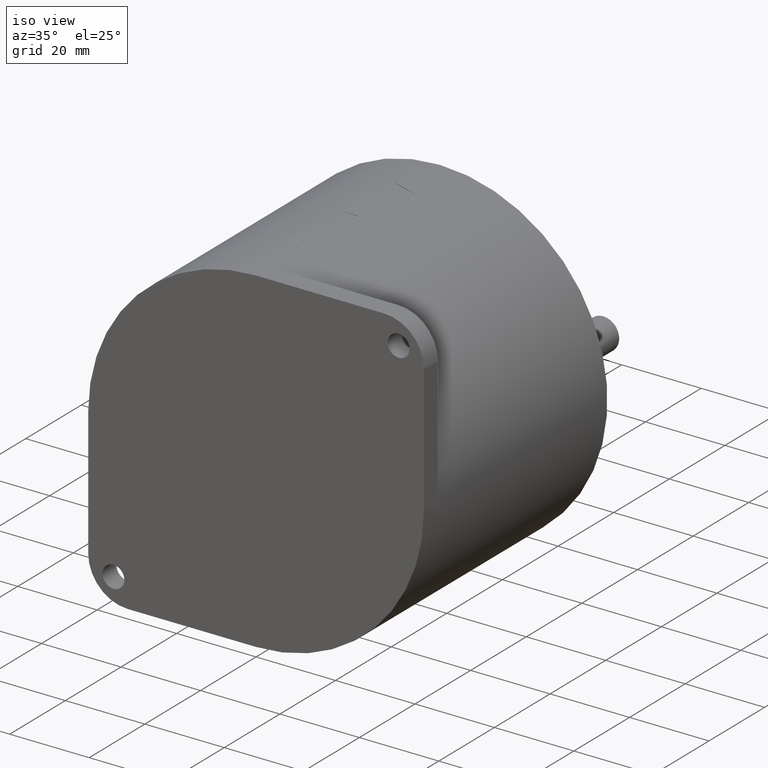
[diagram: clean part render]
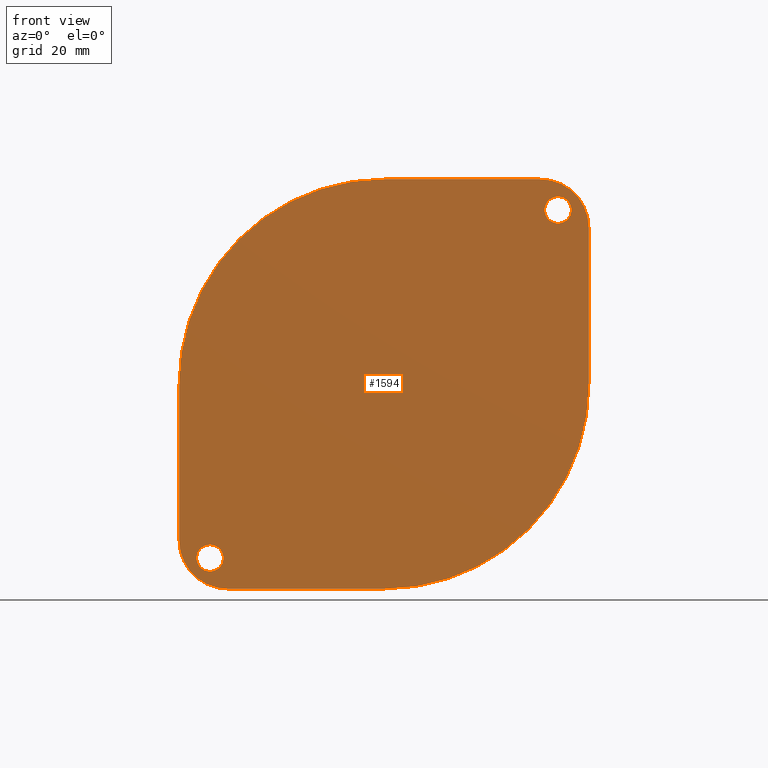
[diagram: tour spotlight — one face highlighted and labeled with its STEP entity id]
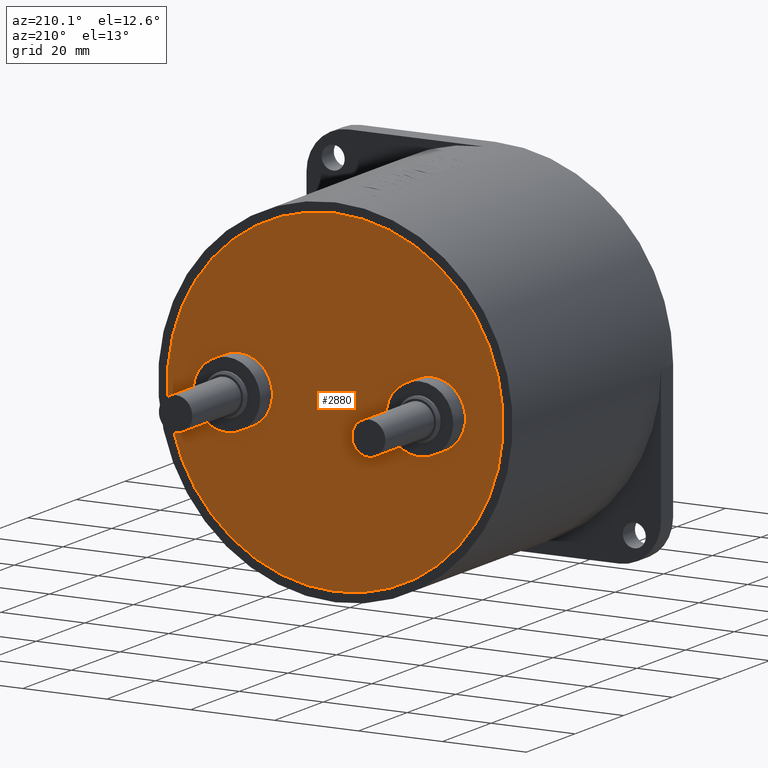
[diagram: tour spotlight — one face highlighted and labeled with its STEP entity id]
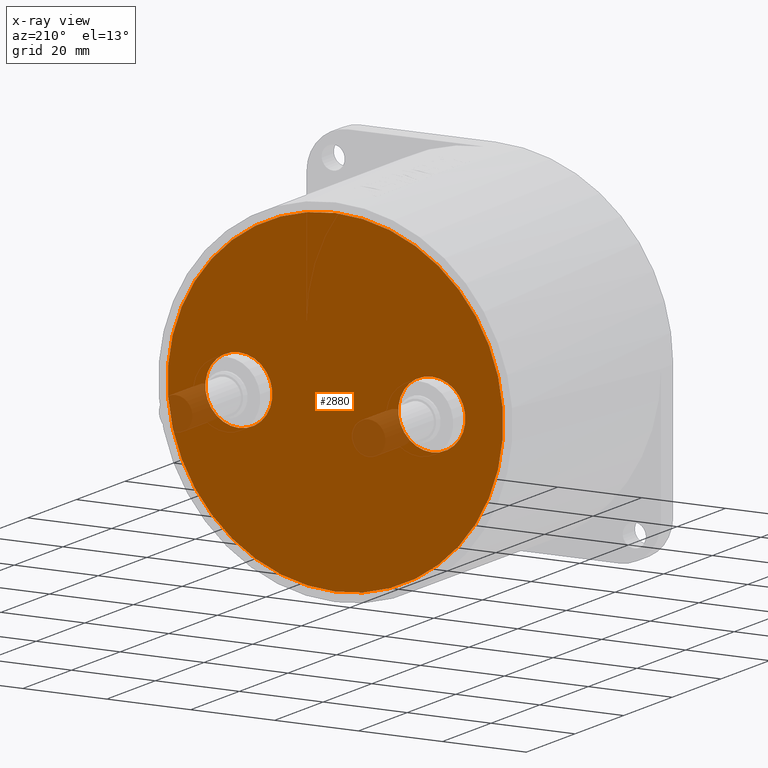
[diagram: x-ray of the same camera — body ghosted, this tour face saturated]
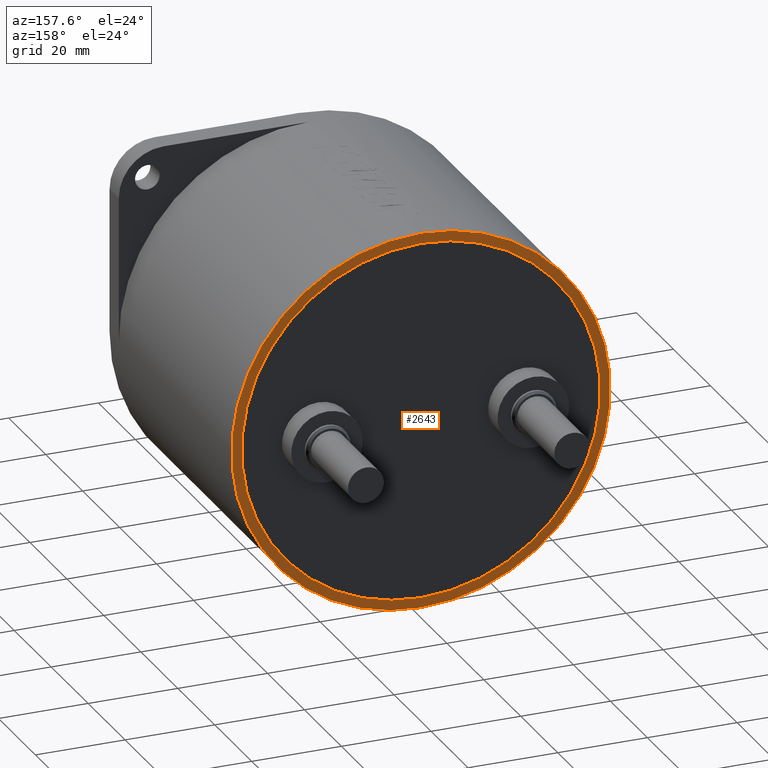
[diagram: tour spotlight — one face highlighted and labeled with its STEP entity id]
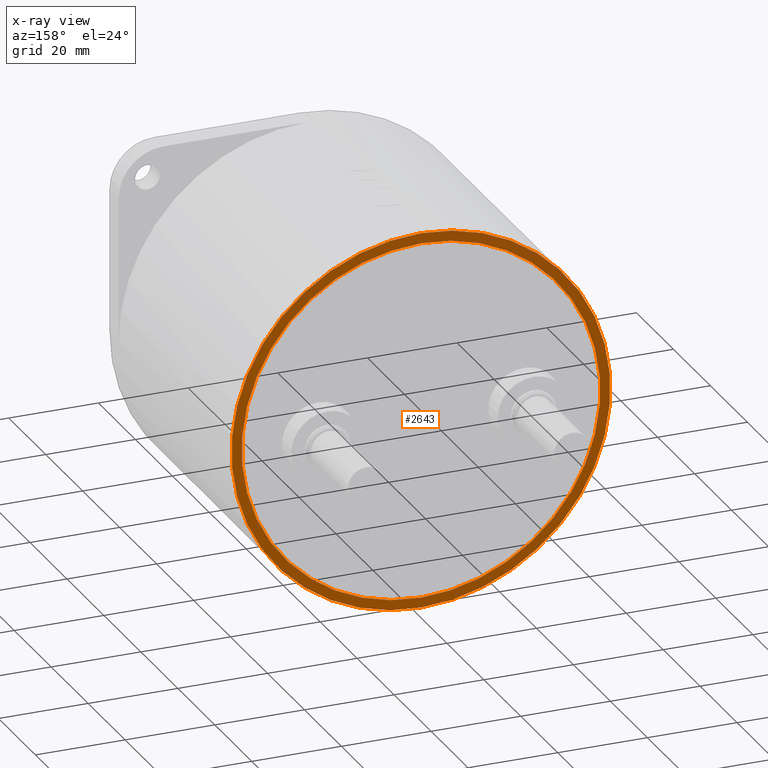
[diagram: x-ray of the same camera — body ghosted, this tour face saturated]
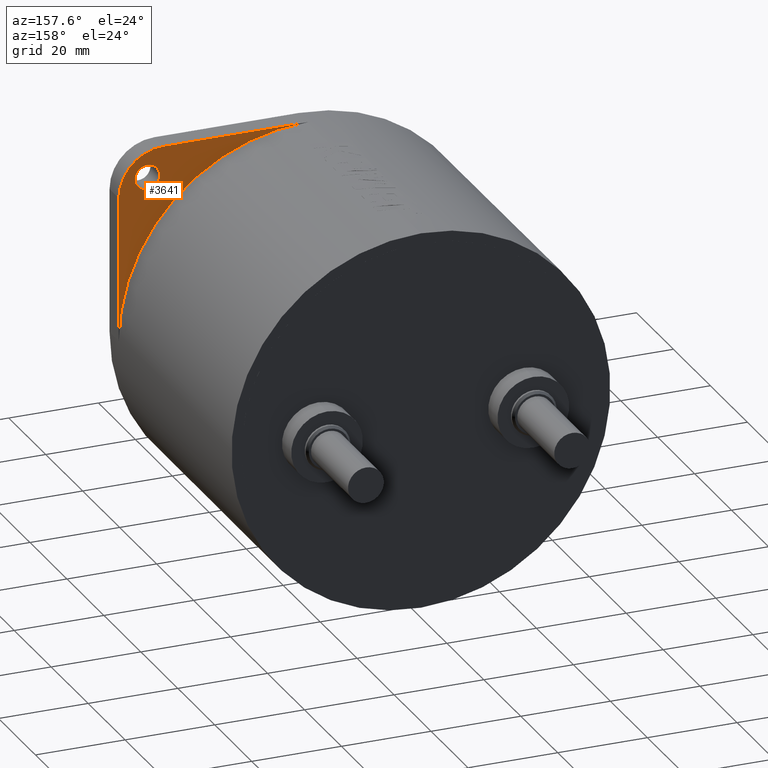
[diagram: tour spotlight — one face highlighted and labeled with its STEP entity id]
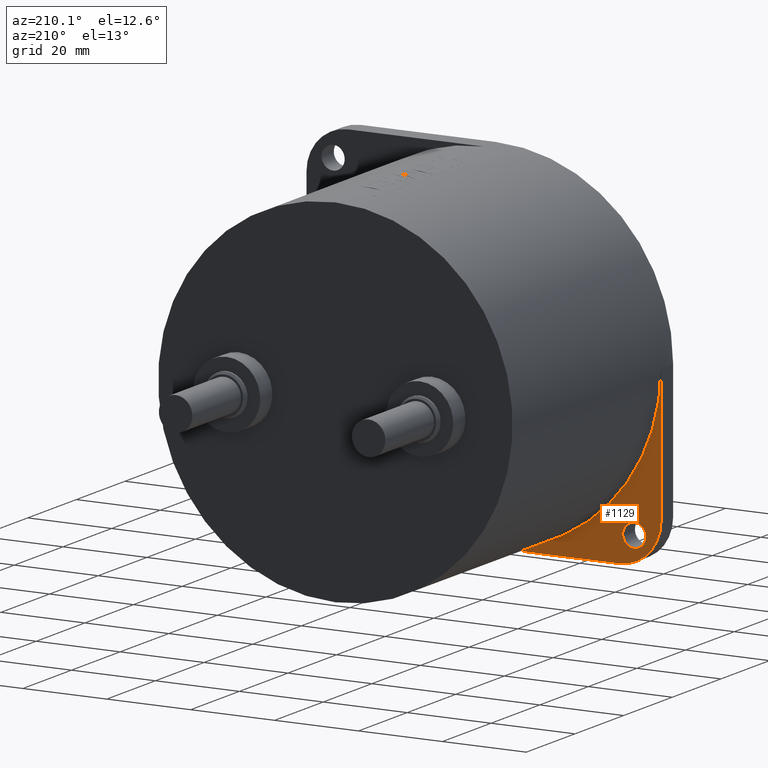
[diagram: tour spotlight — one face highlighted and labeled with its STEP entity id]
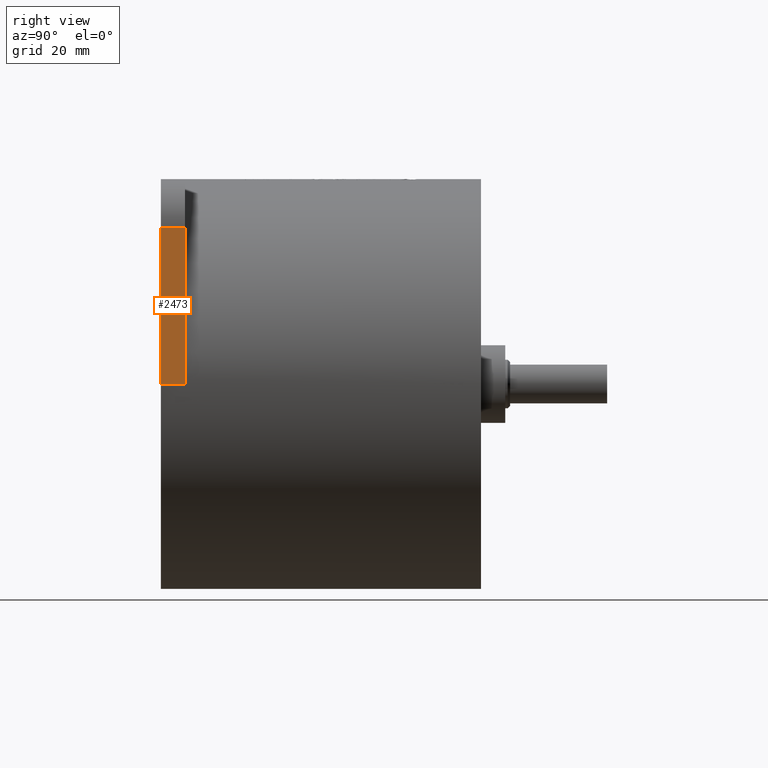
[diagram: tour spotlight — one face highlighted and labeled with its STEP entity id]
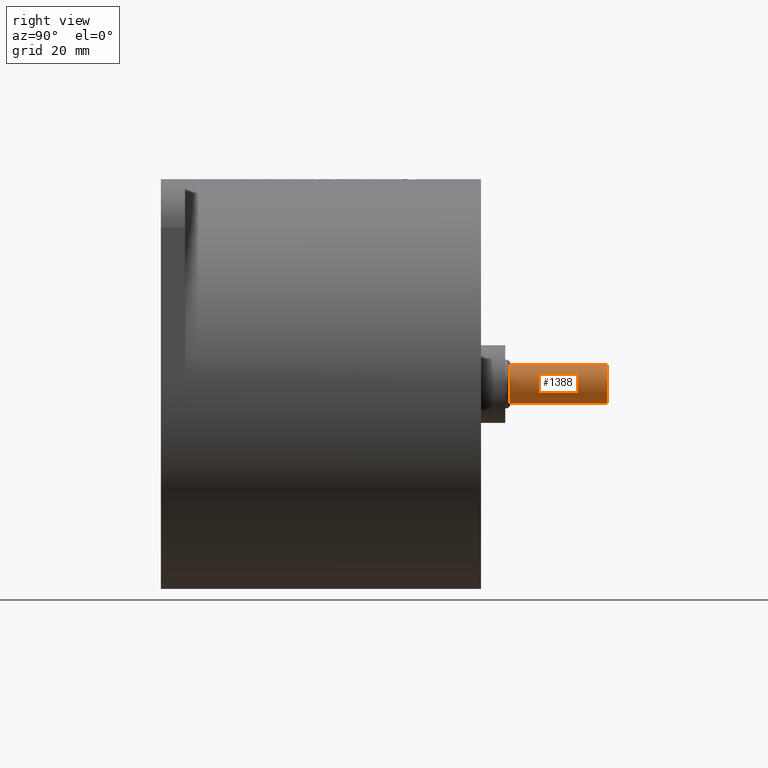
[diagram: tour spotlight — one face highlighted and labeled with its STEP entity id]
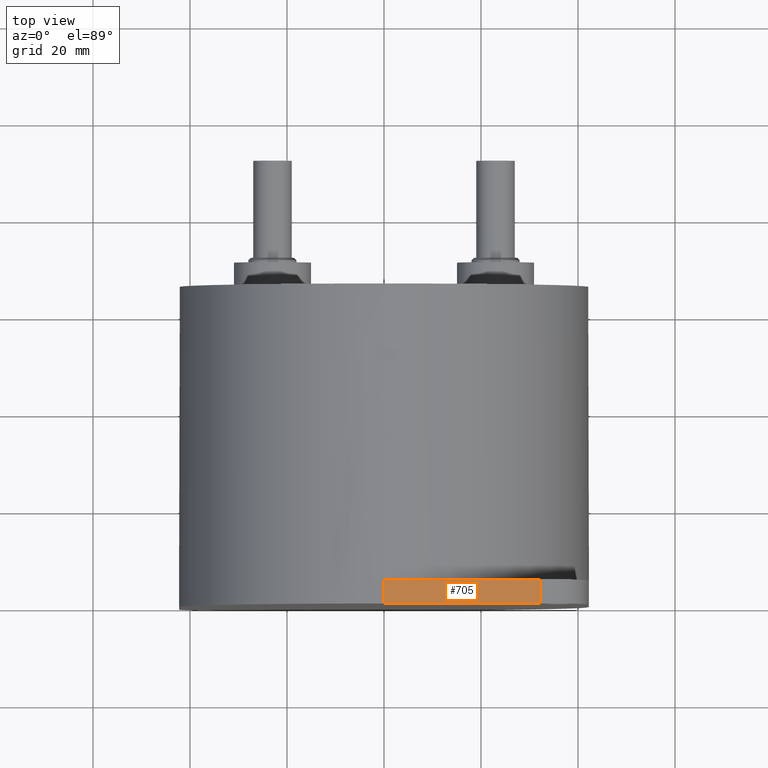
[diagram: tour spotlight — one face highlighted and labeled with its STEP entity id]
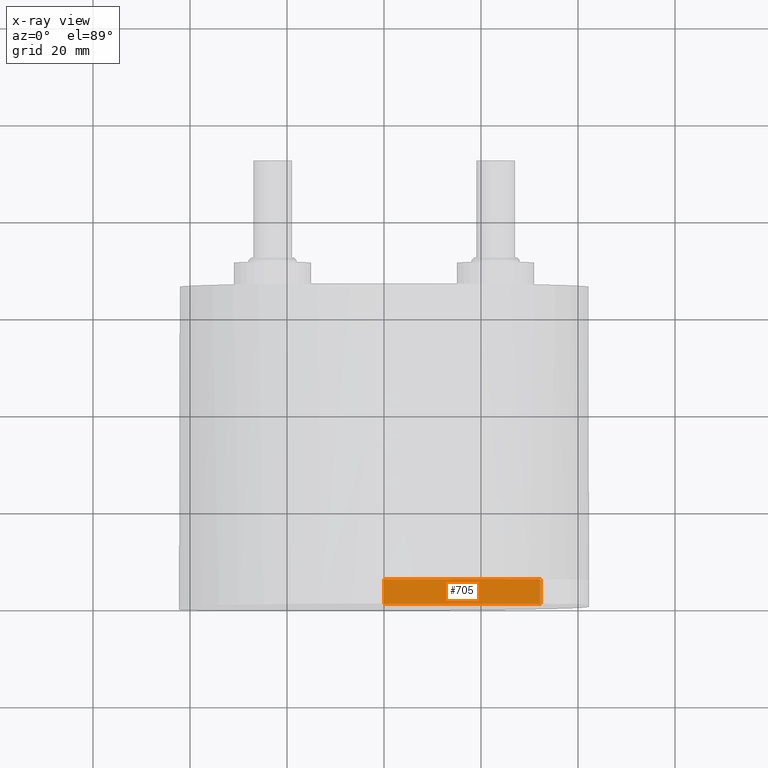
[diagram: x-ray of the same camera — body ghosted, this tour face saturated]
A machine part: a face-by-face anatomy tour. The part has 103 B-rep faces; the first image is the clean iso view, then the 8 largest visible faces are spotlighted one at a time (largest first), each with its STEP entity span.

Face 1 — front view, entity #1594. In plain terms, the highlighted planar face has unit normal (0, 1, 0).
Definition (entity closure, byte-faithful):
#20 = VERTEX_POINT ( 'NONE', #3676 ) ;
#23 = DIRECTION ( 'NONE',  ( 0.0000000000000000000, 0.0000000000000000000, 1.000000000000000000 ) ) ;
#36 = DIRECTION ( 'NONE',  ( 0.0000000000000000000, 1.000000000000000000, 0.0000000000000000000 ) ) ;
#70 = VERTEX_POINT ( 'NONE', #150 ) ;
#81 = EDGE_CURVE ( 'NONE', #2620, #548, #2420, .T. ) ;
#104 = VECTOR ( 'NONE', #1100, 1000.000000000000000 ) ;
#123 = DIRECTION ( 'NONE',  ( 0.0000000000000000000, 1.000000000000000000, 0.0000000000000000000 ) ) ;
#150 = CARTESIAN_POINT ( 'NONE',  ( -35.88566914521728500, 0.0000000000000000000, -38.63566914521728500 ) ) ;
#229 = VERTEX_POINT ( 'NONE', #1014 ) ;
#291 = VERTEX_POINT ( 'NONE', #1680 ) ;
#310 = DIRECTION ( 'NONE',  ( 0.0000000000000000000, 1.000000000000000000, 0.0000000000000000000 ) ) ;
#315 = CARTESIAN_POINT ( 'NONE',  ( 35.88566914521728500, 0.0000000000000000000, 33.13566914521728500 ) ) ;
#328 = EDGE_LOOP ( 'NONE', ( #2845, #1526 ) ) ;
#358 = CIRCLE ( 'NONE', #2299, 2.750000000000002700 ) ;
#369 = VERTEX_POINT ( 'NONE', #2402 ) ;
#376 = CARTESIAN_POINT ( 'NONE',  ( 35.88566914521728500, 0.0000000000000000000, 35.88566914521728500 ) ) ;
#383 = DIRECTION ( 'NONE',  ( 0.0000000000000000000, 0.0000000000000000000, 1.000000000000000000 ) ) ;
#388 = DIRECTION ( 'NONE',  ( 0.0000000000000000000, 1.000000000000000000, 0.0000000000000000000 ) ) ;
#548 = VERTEX_POINT ( 'NONE', #2119 ) ;
#651 = CIRCLE ( 'NONE', #2408, 42.25000000000000000 ) ;
#694 = EDGE_LOOP ( 'NONE', ( #3637, #1729 ) ) ;
#699 = CIRCLE ( 'NONE', #1642, 42.25000000000000000 ) ;
#700 = EDGE_CURVE ( 'NONE', #229, #2620, #699, .T. ) ;
#806 = AXIS2_PLACEMENT_3D ( 'NONE', #376, #36, #1669 ) ;
#917 = CARTESIAN_POINT ( 'NONE',  ( -32.25000000000000000, 0.0000000000000000000, -32.25000000000000000 ) ) ;
#984 = CARTESIAN_POINT ( 'NONE',  ( 0.0000000000000000000, 0.0000000000000000000, 0.0000000000000000000 ) ) ;
#1014 = CARTESIAN_POINT ( 'NONE',  ( 42.25000000000000000, 0.0000000000000000000, 0.0000000000000000000 ) ) ;
#1032 = CARTESIAN_POINT ( 'NONE',  ( -35.88566914521728500, 0.0000000000000000000, -35.88566914521728500 ) ) ;
#1034 = ORIENTED_EDGE ( 'NONE', *, *, #3307, .F. ) ;
#1053 = DIRECTION ( 'NONE',  ( 1.000000000000000000, 0.0000000000000000000, 0.0000000000000000000 ) ) ;
#1100 = DIRECTION ( 'NONE',  ( -1.000000000000000000, 0.0000000000000000000, 0.0000000000000000000 ) ) ;
#1104 = DIRECTION ( 'NONE',  ( 0.0000000000000000000, 0.0000000000000000000, 1.000000000000000000 ) ) ;
#1134 = AXIS2_PLACEMENT_3D ( 'NONE', #917, #1192, #3441 ) ;
#1141 = CARTESIAN_POINT ( 'NONE',  ( 42.25000000000000000, 0.0000000000000000000, 42.25000000000000000 ) ) ;
#1190 = CIRCLE ( 'NONE', #1212, 2.750000000000002700 ) ;
#1192 = DIRECTION ( 'NONE',  ( -0.0000000000000000000, -1.000000000000000000, -0.0000000000000000000 ) ) ;
#1202 = ORIENTED_EDGE ( 'NONE', *, *, #1257, .F. ) ;
#1212 = AXIS2_PLACEMENT_3D ( 'NONE', #3867, #2912, #3855 ) ;
#1257 = EDGE_CURVE ( 'NONE', #369, #229, #1959, .T. ) ;
#1268 = ORIENTED_EDGE ( 'NONE', *, *, #2394, .F. ) ;
#1311 = CARTESIAN_POINT ( 'NONE',  ( -42.25000000000000000, 0.0000000000000000000, -32.25000000000000000 ) ) ;
#1343 = VECTOR ( 'NONE', #3669, 1000.000000000000000 ) ;
#1352 = EDGE_CURVE ( 'NONE', #2429, #548, #3414, .T. ) ;
#1396 = VERTEX_POINT ( 'NONE', #315 ) ;
#1526 = ORIENTED_EDGE ( 'NONE', *, *, #1643, .T. ) ;
#1539 = CARTESIAN_POINT ( 'NONE',  ( 32.25000000000000000, 0.0000000000000000000, 32.25000000000000000 ) ) ;
#1543 = ORIENTED_EDGE ( 'NONE', *, *, #1352, .T. ) ;
#1554 = DIRECTION ( 'NONE',  ( 0.0000000000000000000, 0.0000000000000000000, 1.000000000000000000 ) ) ;
#1594 = ADVANCED_FACE ( 'NONE', ( #3265, #2428, #4007 ), #2664, .F. ) ;
#1595 = EDGE_CURVE ( 'NONE', #2332, #291, #4047, .T. ) ;
#1603 = CARTESIAN_POINT ( 'NONE',  ( -42.25000000000000000, 0.0000000000000000000, -42.25000000000000000 ) ) ;
#1642 = AXIS2_PLACEMENT_3D ( 'NONE', #984, #3862, #383 ) ;
#1643 = EDGE_CURVE ( 'NONE', #70, #20, #4002, .T. ) ;
#1653 = DIRECTION ( 'NONE',  ( 0.0000000000000000000, 1.000000000000000000, 0.0000000000000000000 ) ) ;
#1669 = DIRECTION ( 'NONE',  ( 0.0000000000000000000, 0.0000000000000000000, 1.000000000000000000 ) ) ;
#1680 = CARTESIAN_POINT ( 'NONE',  ( 32.25000000000000000, 0.0000000000000000000, 42.25000000000000000 ) ) ;
#1717 = CARTESIAN_POINT ( 'NONE',  ( -42.25000000000000000, 0.0000000000000000000, 0.0000000000000000000 ) ) ;
#1729 = ORIENTED_EDGE ( 'NONE', *, *, #2161, .T. ) ;
#1831 = CARTESIAN_POINT ( 'NONE',  ( 0.0000000000000000000, 0.0000000000000000000, -42.25000000000000000 ) ) ;
#1878 = DIRECTION ( 'NONE',  ( 0.0000000000000000000, 0.0000000000000000000, 1.000000000000000000 ) ) ;
#1959 = LINE ( 'NONE', #1141, #1343 ) ;
#2119 = CARTESIAN_POINT ( 'NONE',  ( -32.25000000000000000, 0.0000000000000000000, -42.25000000000000000 ) ) ;
#2137 = CIRCLE ( 'NONE', #2905, 10.00000000000000200 ) ;
#2152 = LINE ( 'NONE', #1603, #3202 ) ;
#2161 = EDGE_CURVE ( 'NONE', #1396, #3326, #1190, .T. ) ;
#2201 = EDGE_CURVE ( 'NONE', #3326, #1396, #3929, .T. ) ;
#2205 = EDGE_CURVE ( 'NONE', #20, #70, #358, .T. ) ;
#2299 = AXIS2_PLACEMENT_3D ( 'NONE', #1032, #1653, #23 ) ;
#2332 = VERTEX_POINT ( 'NONE', #2598 ) ;
#2372 = VECTOR ( 'NONE', #1053, 1000.000000000000000 ) ;
#2394 = EDGE_CURVE ( 'NONE', #2429, #3703, #2152, .T. ) ;
#2402 = CARTESIAN_POINT ( 'NONE',  ( 42.25000000000000000, 0.0000000000000000000, 32.25000000000000000 ) ) ;
#2408 = AXIS2_PLACEMENT_3D ( 'NONE', #2875, #310, #1878 ) ;
#2420 = LINE ( 'NONE', #3308, #104 ) ;
#2428 = FACE_BOUND ( 'NONE', #328, .T. ) ;
#2429 = VERTEX_POINT ( 'NONE', #1311 ) ;
#2598 = CARTESIAN_POINT ( 'NONE',  ( 0.0000000000000000000, 0.0000000000000000000, 42.25000000000000000 ) ) ;
#2620 = VERTEX_POINT ( 'NONE', #1831 ) ;
#2664 = PLANE ( 'NONE',  #3595 ) ;
#2845 = ORIENTED_EDGE ( 'NONE', *, *, #2205, .T. ) ;
#2848 = DIRECTION ( 'NONE',  ( -0.0000000000000000000, -1.000000000000000000, -0.0000000000000000000 ) ) ;
#2863 = CARTESIAN_POINT ( 'NONE',  ( 35.88566914521728500, 0.0000000000000000000, 38.63566914521728500 ) ) ;
#2875 = CARTESIAN_POINT ( 'NONE',  ( 0.0000000000000000000, 0.0000000000000000000, 0.0000000000000000000 ) ) ;
#2883 = AXIS2_PLACEMENT_3D ( 'NONE', #3041, #123, #1104 ) ;
#2905 = AXIS2_PLACEMENT_3D ( 'NONE', #1539, #2848, #1554 ) ;
#2912 = DIRECTION ( 'NONE',  ( 0.0000000000000000000, 1.000000000000000000, 0.0000000000000000000 ) ) ;
#2960 = CARTESIAN_POINT ( 'NONE',  ( 0.0000000000000000000, 0.0000000000000000000, 42.25000000000000000 ) ) ;
#3041 = CARTESIAN_POINT ( 'NONE',  ( -35.88566914521728500, 0.0000000000000000000, -35.88566914521728500 ) ) ;
#3173 = ORIENTED_EDGE ( 'NONE', *, *, #81, .F. ) ;
#3202 = VECTOR ( 'NONE', #3214, 1000.000000000000000 ) ;
#3214 = DIRECTION ( 'NONE',  ( 0.0000000000000000000, 0.0000000000000000000, 1.000000000000000000 ) ) ;
#3265 = FACE_BOUND ( 'NONE', #694, .T. ) ;
#3269 = DIRECTION ( 'NONE',  ( 0.0000000000000000000, -0.0000000000000000000, 1.000000000000000000 ) ) ;
#3307 = EDGE_CURVE ( 'NONE', #3703, #2332, #651, .T. ) ;
#3308 = CARTESIAN_POINT ( 'NONE',  ( 0.0000000000000000000, 0.0000000000000000000, -42.25000000000000000 ) ) ;
#3326 = VERTEX_POINT ( 'NONE', #2863 ) ;
#3414 = CIRCLE ( 'NONE', #1134, 10.00000000000000200 ) ;
#3426 = EDGE_LOOP ( 'NONE', ( #1268, #1543, #3173, #3467, #1202, #3665, #3874, #1034 ) ) ;
#3441 = DIRECTION ( 'NONE',  ( 0.0000000000000000000, 0.0000000000000000000, 1.000000000000000000 ) ) ;
#3467 = ORIENTED_EDGE ( 'NONE', *, *, #700, .F. ) ;
#3474 = EDGE_CURVE ( 'NONE', #369, #291, #2137, .T. ) ;
#3595 = AXIS2_PLACEMENT_3D ( 'NONE', #3886, #388, #3269 ) ;
#3637 = ORIENTED_EDGE ( 'NONE', *, *, #2201, .T. ) ;
#3665 = ORIENTED_EDGE ( 'NONE', *, *, #3474, .T. ) ;
#3669 = DIRECTION ( 'NONE',  ( 0.0000000000000000000, 0.0000000000000000000, -1.000000000000000000 ) ) ;
#3676 = CARTESIAN_POINT ( 'NONE',  ( -35.88566914521728500, 0.0000000000000000000, -33.13566914521728500 ) ) ;
#3703 = VERTEX_POINT ( 'NONE', #1717 ) ;
#3855 = DIRECTION ( 'NONE',  ( 0.0000000000000000000, 0.0000000000000000000, 1.000000000000000000 ) ) ;
#3862 = DIRECTION ( 'NONE',  ( 0.0000000000000000000, 1.000000000000000000, 0.0000000000000000000 ) ) ;
#3867 = CARTESIAN_POINT ( 'NONE',  ( 35.88566914521728500, 0.0000000000000000000, 35.88566914521728500 ) ) ;
#3874 = ORIENTED_EDGE ( 'NONE', *, *, #1595, .F. ) ;
#3886 = CARTESIAN_POINT ( 'NONE',  ( 0.0000000000000000000, 0.0000000000000000000, 0.0000000000000000000 ) ) ;
#3929 = CIRCLE ( 'NONE', #806, 2.750000000000002700 ) ;
#4002 = CIRCLE ( 'NONE', #2883, 2.750000000000002700 ) ;
#4007 = FACE_OUTER_BOUND ( 'NONE', #3426, .T. ) ;
#4047 = LINE ( 'NONE', #2960, #2372 ) ;

Face 2 — auxiliary view, entity #2880. An x-ray twin of the same camera follows (body ghosted, this face saturated) — the face is partly hidden behind the body. In plain terms, the highlighted planar face has unit normal (0, 1, 0).
Definition (entity closure, byte-faithful):
#1 = EDGE_CURVE ( 'NONE', #232, #1627, #317, .T. ) ;
#11 = CARTESIAN_POINT ( 'NONE',  ( -23.00000000000000000, 66.00500000000001000, -8.000000000000001800 ) ) ;
#58 = DIRECTION ( 'NONE',  ( 0.0000000000000000000, 1.000000000000000000, 0.0000000000000000000 ) ) ;
#72 = DIRECTION ( 'NONE',  ( 0.0000000000000000000, 1.000000000000000000, 0.0000000000000000000 ) ) ;
#131 = ORIENTED_EDGE ( 'NONE', *, *, #1, .T. ) ;
#142 = AXIS2_PLACEMENT_3D ( 'NONE', #3494, #913, #4107 ) ;
#168 = AXIS2_PLACEMENT_3D ( 'NONE', #1815, #3750, #233 ) ;
#183 = VERTEX_POINT ( 'NONE', #2508 ) ;
#232 = VERTEX_POINT ( 'NONE', #3261 ) ;
#233 = DIRECTION ( 'NONE',  ( 0.0000000000000000000, 0.0000000000000000000, 1.000000000000000000 ) ) ;
#241 = AXIS2_PLACEMENT_3D ( 'NONE', #3336, #1099, #3401 ) ;
#317 = CIRCLE ( 'NONE', #1692, 39.99807500000000000 ) ;
#355 = ORIENTED_EDGE ( 'NONE', *, *, #2484, .T. ) ;
#357 = CIRCLE ( 'NONE', #168, 39.99807500000000000 ) ;
#498 = DIRECTION ( 'NONE',  ( -0.0000000000000000000, -1.000000000000000000, -0.0000000000000000000 ) ) ;
#566 = EDGE_CURVE ( 'NONE', #1107, #1373, #3140, .T. ) ;
#686 = EDGE_LOOP ( 'NONE', ( #1615, #1251 ) ) ;
#692 = PLANE ( 'NONE',  #2654 ) ;
#725 = EDGE_CURVE ( 'NONE', #183, #2058, #2638, .T. ) ;
#913 = DIRECTION ( 'NONE',  ( -0.0000000000000000000, -1.000000000000000000, -0.0000000000000000000 ) ) ;
#975 = DIRECTION ( 'NONE',  ( 0.0000000000000000000, -0.0000000000000000000, 1.000000000000000000 ) ) ;
#1035 = FACE_OUTER_BOUND ( 'NONE', #1451, .T. ) ;
#1099 = DIRECTION ( 'NONE',  ( 0.0000000000000000000, 1.000000000000000000, 0.0000000000000000000 ) ) ;
#1107 = VERTEX_POINT ( 'NONE', #2670 ) ;
#1236 = CIRCLE ( 'NONE', #4103, 8.000000000000001800 ) ;
#1251 = ORIENTED_EDGE ( 'NONE', *, *, #566, .T. ) ;
#1326 = CARTESIAN_POINT ( 'NONE',  ( 0.0000000000000000000, 66.00500000000001000, 0.0000000000000000000 ) ) ;
#1332 = CIRCLE ( 'NONE', #241, 8.000000000000001800 ) ;
#1373 = VERTEX_POINT ( 'NONE', #3115 ) ;
#1451 = EDGE_LOOP ( 'NONE', ( #355, #131 ) ) ;
#1615 = ORIENTED_EDGE ( 'NONE', *, *, #1693, .T. ) ;
#1627 = VERTEX_POINT ( 'NONE', #3328 ) ;
#1646 = FACE_BOUND ( 'NONE', #4024, .T. ) ;
#1664 = DIRECTION ( 'NONE',  ( 0.0000000000000000000, 1.000000000000000000, 0.0000000000000000000 ) ) ;
#1692 = AXIS2_PLACEMENT_3D ( 'NONE', #1326, #72, #3355 ) ;
#1693 = EDGE_CURVE ( 'NONE', #1373, #1107, #1236, .T. ) ;
#1815 = CARTESIAN_POINT ( 'NONE',  ( 0.0000000000000000000, 66.00500000000001000, 0.0000000000000000000 ) ) ;
#1869 = EDGE_CURVE ( 'NONE', #2058, #183, #1332, .T. ) ;
#1971 = CARTESIAN_POINT ( 'NONE',  ( -23.00000000000000000, 66.00500000000001000, 0.0000000000000000000 ) ) ;
#2058 = VERTEX_POINT ( 'NONE', #11 ) ;
#2484 = EDGE_CURVE ( 'NONE', #1627, #232, #357, .T. ) ;
#2508 = CARTESIAN_POINT ( 'NONE',  ( -23.00000000000000000, 66.00500000000001000, 8.000000000000001800 ) ) ;
#2624 = ORIENTED_EDGE ( 'NONE', *, *, #725, .F. ) ;
#2638 = CIRCLE ( 'NONE', #3770, 8.000000000000001800 ) ;
#2654 = AXIS2_PLACEMENT_3D ( 'NONE', #2894, #1664, #975 ) ;
#2670 = CARTESIAN_POINT ( 'NONE',  ( 23.00000000000000000, 66.00500000000001000, 8.000000000000001800 ) ) ;
#2741 = DIRECTION ( 'NONE',  ( 0.0000000000000000000, 0.0000000000000000000, 1.000000000000000000 ) ) ;
#2880 = ADVANCED_FACE ( 'NONE', ( #1646, #1035, #3043 ), #692, .T. ) ;
#2894 = CARTESIAN_POINT ( 'NONE',  ( 0.0000000000000000000, 66.00500000000001000, 0.0000000000000000000 ) ) ;
#2991 = ORIENTED_EDGE ( 'NONE', *, *, #1869, .F. ) ;
#3043 = FACE_BOUND ( 'NONE', #686, .T. ) ;
#3115 = CARTESIAN_POINT ( 'NONE',  ( 23.00000000000000000, 66.00500000000001000, -8.000000000000001800 ) ) ;
#3140 = CIRCLE ( 'NONE', #142, 8.000000000000001800 ) ;
#3255 = DIRECTION ( 'NONE',  ( 0.0000000000000000000, 0.0000000000000000000, 1.000000000000000000 ) ) ;
#3261 = CARTESIAN_POINT ( 'NONE',  ( 4.898351452080576600E-015, 66.00500000000001000, 39.99807500000000000 ) ) ;
#3328 = CARTESIAN_POINT ( 'NONE',  ( 0.0000000000000000000, 66.00500000000001000, -39.99807500000000000 ) ) ;
#3336 = CARTESIAN_POINT ( 'NONE',  ( -23.00000000000000000, 66.00500000000001000, 0.0000000000000000000 ) ) ;
#3355 = DIRECTION ( 'NONE',  ( 0.0000000000000000000, 0.0000000000000000000, 1.000000000000000000 ) ) ;
#3401 = DIRECTION ( 'NONE',  ( 0.0000000000000000000, 0.0000000000000000000, 1.000000000000000000 ) ) ;
#3494 = CARTESIAN_POINT ( 'NONE',  ( 23.00000000000000000, 66.00500000000001000, 0.0000000000000000000 ) ) ;
#3623 = CARTESIAN_POINT ( 'NONE',  ( 23.00000000000000000, 66.00500000000001000, 0.0000000000000000000 ) ) ;
#3750 = DIRECTION ( 'NONE',  ( 0.0000000000000000000, 1.000000000000000000, 0.0000000000000000000 ) ) ;
#3770 = AXIS2_PLACEMENT_3D ( 'NONE', #1971, #58, #3255 ) ;
#4024 = EDGE_LOOP ( 'NONE', ( #2991, #2624 ) ) ;
#4103 = AXIS2_PLACEMENT_3D ( 'NONE', #3623, #498, #2741 ) ;
#4107 = DIRECTION ( 'NONE',  ( 0.0000000000000000000, 0.0000000000000000000, 1.000000000000000000 ) ) ;

Face 3 — auxiliary view, entity #2643. An x-ray twin of the same camera follows (body ghosted, this face saturated) — the face is partly hidden behind the body. In plain terms, the highlighted planar face has unit normal (0, 1, 0).
Definition (entity closure, byte-faithful):
#253 = AXIS2_PLACEMENT_3D ( 'NONE', #1091, #2033, #3330 ) ;
#325 = EDGE_CURVE ( 'NONE', #1399, #2755, #407, .T. ) ;
#407 = CIRCLE ( 'NONE', #253, 39.99807500000000000 ) ;
#441 = ORIENTED_EDGE ( 'NONE', *, *, #325, .F. ) ;
#456 = CIRCLE ( 'NONE', #2803, 42.25000000000000000 ) ;
#570 = DIRECTION ( 'NONE',  ( 0.0000000000000000000, 0.0000000000000000000, 1.000000000000000000 ) ) ;
#657 = FACE_OUTER_BOUND ( 'NONE', #2661, .T. ) ;
#966 = CARTESIAN_POINT ( 'NONE',  ( 4.898351452080576600E-015, 66.00000000000000000, 39.99807500000000000 ) ) ;
#1075 = DIRECTION ( 'NONE',  ( 0.0000000000000000000, 1.000000000000000000, 0.0000000000000000000 ) ) ;
#1091 = CARTESIAN_POINT ( 'NONE',  ( 0.0000000000000000000, 66.00000000000000000, 0.0000000000000000000 ) ) ;
#1295 = CARTESIAN_POINT ( 'NONE',  ( 0.0000000000000000000, 66.00000000000000000, -42.25000000000000000 ) ) ;
#1366 = CARTESIAN_POINT ( 'NONE',  ( 0.0000000000000000000, 66.00000000000000000, 0.0000000000000000000 ) ) ;
#1399 = VERTEX_POINT ( 'NONE', #3209 ) ;
#1468 = VERTEX_POINT ( 'NONE', #1295 ) ;
#1487 = FACE_BOUND ( 'NONE', #2882, .T. ) ;
#1576 = DIRECTION ( 'NONE',  ( 0.0000000000000000000, 1.000000000000000000, 0.0000000000000000000 ) ) ;
#1705 = DIRECTION ( 'NONE',  ( 0.0000000000000000000, 0.0000000000000000000, 1.000000000000000000 ) ) ;
#1798 = DIRECTION ( 'NONE',  ( 0.0000000000000000000, 0.0000000000000000000, 1.000000000000000000 ) ) ;
#1857 = DIRECTION ( 'NONE',  ( 0.0000000000000000000, -0.0000000000000000000, 1.000000000000000000 ) ) ;
#2019 = CARTESIAN_POINT ( 'NONE',  ( 0.0000000000000000000, 66.00000000000000000, 0.0000000000000000000 ) ) ;
#2033 = DIRECTION ( 'NONE',  ( 0.0000000000000000000, 1.000000000000000000, 0.0000000000000000000 ) ) ;
#2080 = ORIENTED_EDGE ( 'NONE', *, *, #2499, .F. ) ;
#2258 = EDGE_CURVE ( 'NONE', #2529, #1468, #456, .T. ) ;
#2479 = CARTESIAN_POINT ( 'NONE',  ( 5.174132726397567100E-015, 66.00000000000000000, 42.25000000000000000 ) ) ;
#2499 = EDGE_CURVE ( 'NONE', #2755, #1399, #3639, .T. ) ;
#2529 = VERTEX_POINT ( 'NONE', #2479 ) ;
#2643 = ADVANCED_FACE ( 'NONE', ( #657, #1487 ), #3080, .T. ) ;
#2661 = EDGE_LOOP ( 'NONE', ( #3126, #2933 ) ) ;
#2743 = AXIS2_PLACEMENT_3D ( 'NONE', #3199, #1576, #1857 ) ;
#2755 = VERTEX_POINT ( 'NONE', #966 ) ;
#2771 = DIRECTION ( 'NONE',  ( 0.0000000000000000000, 1.000000000000000000, 0.0000000000000000000 ) ) ;
#2785 = DIRECTION ( 'NONE',  ( 0.0000000000000000000, 1.000000000000000000, 0.0000000000000000000 ) ) ;
#2803 = AXIS2_PLACEMENT_3D ( 'NONE', #1366, #2771, #570 ) ;
#2858 = AXIS2_PLACEMENT_3D ( 'NONE', #2019, #1075, #1705 ) ;
#2882 = EDGE_LOOP ( 'NONE', ( #441, #2080 ) ) ;
#2933 = ORIENTED_EDGE ( 'NONE', *, *, #2258, .T. ) ;
#3080 = PLANE ( 'NONE',  #2743 ) ;
#3126 = ORIENTED_EDGE ( 'NONE', *, *, #3706, .T. ) ;
#3199 = CARTESIAN_POINT ( 'NONE',  ( 0.0000000000000000000, 66.00000000000000000, 0.0000000000000000000 ) ) ;
#3209 = CARTESIAN_POINT ( 'NONE',  ( 0.0000000000000000000, 66.00000000000000000, -39.99807500000000000 ) ) ;
#3248 = AXIS2_PLACEMENT_3D ( 'NONE', #4033, #2785, #1798 ) ;
#3330 = DIRECTION ( 'NONE',  ( 0.0000000000000000000, 0.0000000000000000000, 1.000000000000000000 ) ) ;
#3639 = CIRCLE ( 'NONE', #3248, 39.99807500000000000 ) ;
#3706 = EDGE_CURVE ( 'NONE', #1468, #2529, #3834, .T. ) ;
#3834 = CIRCLE ( 'NONE', #2858, 42.25000000000000000 ) ;
#4033 = CARTESIAN_POINT ( 'NONE',  ( 0.0000000000000000000, 66.00000000000000000, 0.0000000000000000000 ) ) ;

Face 4 — auxiliary view, entity #3641. In plain terms, the highlighted planar face has unit normal (0, 1, 0).
Definition (entity closure, byte-faithful):
#69 = AXIS2_PLACEMENT_3D ( 'NONE', #1965, #1996, #2926 ) ;
#117 = DIRECTION ( 'NONE',  ( 0.0000000000000000000, 1.000000000000000000, 0.0000000000000000000 ) ) ;
#205 = DIRECTION ( 'NONE',  ( 0.0000000000000000000, 0.0000000000000000000, 1.000000000000000000 ) ) ;
#299 = LINE ( 'NONE', #3767, #1179 ) ;
#421 = DIRECTION ( 'NONE',  ( 0.0000000000000000000, -0.0000000000000000000, 1.000000000000000000 ) ) ;
#511 = AXIS2_PLACEMENT_3D ( 'NONE', #1027, #3287, #421 ) ;
#579 = EDGE_CURVE ( 'NONE', #2535, #1649, #2230, .T. ) ;
#646 = EDGE_CURVE ( 'NONE', #3456, #3953, #299, .T. ) ;
#664 = CIRCLE ( 'NONE', #69, 42.25000000000000000 ) ;
#688 = PLANE ( 'NONE',  #511 ) ;
#790 = EDGE_CURVE ( 'NONE', #2963, #3456, #2173, .T. ) ;
#845 = LINE ( 'NONE', #1917, #4120 ) ;
#936 = DIRECTION ( 'NONE',  ( 1.000000000000000000, 0.0000000000000000000, 0.0000000000000000000 ) ) ;
#959 = AXIS2_PLACEMENT_3D ( 'NONE', #2424, #2738, #205 ) ;
#1027 = CARTESIAN_POINT ( 'NONE',  ( 0.0000000000000000000, 5.000000000000000000, 0.0000000000000000000 ) ) ;
#1179 = VECTOR ( 'NONE', #3125, 1000.000000000000000 ) ;
#1196 = DIRECTION ( 'NONE',  ( 0.0000000000000000000, 0.0000000000000000000, 1.000000000000000000 ) ) ;
#1361 = CARTESIAN_POINT ( 'NONE',  ( 32.25000000000000000, 5.000000000000000000, 42.25000000000000000 ) ) ;
#1429 = VERTEX_POINT ( 'NONE', #3517 ) ;
#1489 = CARTESIAN_POINT ( 'NONE',  ( 35.88566914521728500, 5.000000000000000000, 38.63566914521728500 ) ) ;
#1545 = CARTESIAN_POINT ( 'NONE',  ( 35.88566914521728500, 5.000000000000000000, 35.88566914521728500 ) ) ;
#1649 = VERTEX_POINT ( 'NONE', #1734 ) ;
#1734 = CARTESIAN_POINT ( 'NONE',  ( 35.88566914521728500, 5.000000000000000000, 33.13566914521728500 ) ) ;
#1917 = CARTESIAN_POINT ( 'NONE',  ( 0.0000000000000000000, 5.000000000000000000, 42.25000000000000000 ) ) ;
#1965 = CARTESIAN_POINT ( 'NONE',  ( 0.0000000000000000000, 5.000000000000000000, 0.0000000000000000000 ) ) ;
#1996 = DIRECTION ( 'NONE',  ( -0.0000000000000000000, -1.000000000000000000, -0.0000000000000000000 ) ) ;
#2028 = CARTESIAN_POINT ( 'NONE',  ( 32.25000000000000000, 5.000000000000000000, 32.25000000000000000 ) ) ;
#2149 = AXIS2_PLACEMENT_3D ( 'NONE', #1545, #2806, #1196 ) ;
#2173 = CIRCLE ( 'NONE', #2828, 10.00000000000000200 ) ;
#2181 = CARTESIAN_POINT ( 'NONE',  ( 42.25000000000000000, 5.000000000000000000, 32.25000000000000000 ) ) ;
#2195 = ORIENTED_EDGE ( 'NONE', *, *, #646, .T. ) ;
#2209 = EDGE_CURVE ( 'NONE', #3953, #1429, #664, .T. ) ;
#2230 = CIRCLE ( 'NONE', #2149, 2.750000000000002700 ) ;
#2288 = CIRCLE ( 'NONE', #959, 2.750000000000002700 ) ;
#2362 = CARTESIAN_POINT ( 'NONE',  ( 42.25000000000000000, 4.999999999999997300, 0.0000000000000000000 ) ) ;
#2424 = CARTESIAN_POINT ( 'NONE',  ( 35.88566914521728500, 5.000000000000000000, 35.88566914521728500 ) ) ;
#2469 = FACE_OUTER_BOUND ( 'NONE', #2902, .T. ) ;
#2535 = VERTEX_POINT ( 'NONE', #1489 ) ;
#2550 = ORIENTED_EDGE ( 'NONE', *, *, #579, .F. ) ;
#2680 = EDGE_LOOP ( 'NONE', ( #2550, #4018 ) ) ;
#2738 = DIRECTION ( 'NONE',  ( 0.0000000000000000000, 1.000000000000000000, 0.0000000000000000000 ) ) ;
#2806 = DIRECTION ( 'NONE',  ( 0.0000000000000000000, 1.000000000000000000, 0.0000000000000000000 ) ) ;
#2828 = AXIS2_PLACEMENT_3D ( 'NONE', #2028, #117, #3883 ) ;
#2902 = EDGE_LOOP ( 'NONE', ( #3680, #3063, #2195, #3892 ) ) ;
#2926 = DIRECTION ( 'NONE',  ( 0.0000000000000000000, 0.0000000000000000000, 1.000000000000000000 ) ) ;
#2963 = VERTEX_POINT ( 'NONE', #1361 ) ;
#3063 = ORIENTED_EDGE ( 'NONE', *, *, #790, .T. ) ;
#3125 = DIRECTION ( 'NONE',  ( 0.0000000000000000000, 0.0000000000000000000, -1.000000000000000000 ) ) ;
#3287 = DIRECTION ( 'NONE',  ( 0.0000000000000000000, 1.000000000000000000, 0.0000000000000000000 ) ) ;
#3314 = EDGE_CURVE ( 'NONE', #1429, #2963, #845, .T. ) ;
#3456 = VERTEX_POINT ( 'NONE', #2181 ) ;
#3517 = CARTESIAN_POINT ( 'NONE',  ( 0.0000000000000000000, 4.999999999999997300, 42.25000000000000000 ) ) ;
#3641 = ADVANCED_FACE ( 'NONE', ( #3990, #2469 ), #688, .T. ) ;
#3680 = ORIENTED_EDGE ( 'NONE', *, *, #3314, .T. ) ;
#3767 = CARTESIAN_POINT ( 'NONE',  ( 42.25000000000000000, 5.000000000000000000, 42.25000000000000000 ) ) ;
#3883 = DIRECTION ( 'NONE',  ( 0.0000000000000000000, 0.0000000000000000000, 1.000000000000000000 ) ) ;
#3892 = ORIENTED_EDGE ( 'NONE', *, *, #2209, .T. ) ;
#3953 = VERTEX_POINT ( 'NONE', #2362 ) ;
#3990 = FACE_BOUND ( 'NONE', #2680, .T. ) ;
#4018 = ORIENTED_EDGE ( 'NONE', *, *, #4087, .F. ) ;
#4087 = EDGE_CURVE ( 'NONE', #1649, #2535, #2288, .T. ) ;
#4120 = VECTOR ( 'NONE', #936, 1000.000000000000000 ) ;

Face 5 — auxiliary view, entity #1129. In plain terms, the highlighted planar face has unit normal (0, 1, 0).
Definition (entity closure, byte-faithful):
#28 = DIRECTION ( 'NONE',  ( 0.0000000000000000000, 1.000000000000000000, 0.0000000000000000000 ) ) ;
#88 = AXIS2_PLACEMENT_3D ( 'NONE', #3384, #2421, #3723 ) ;
#143 = DIRECTION ( 'NONE',  ( 0.0000000000000000000, 0.0000000000000000000, 1.000000000000000000 ) ) ;
#159 = EDGE_CURVE ( 'NONE', #372, #3097, #2757, .T. ) ;
#322 = CARTESIAN_POINT ( 'NONE',  ( 0.0000000000000000000, 5.000000000000000000, -42.25000000000000000 ) ) ;
#372 = VERTEX_POINT ( 'NONE', #2701 ) ;
#417 = CARTESIAN_POINT ( 'NONE',  ( -35.88566914521728500, 5.000000000000000000, -33.13566914521728500 ) ) ;
#471 = PLANE ( 'NONE',  #88 ) ;
#728 = EDGE_CURVE ( 'NONE', #2492, #2175, #3188, .T. ) ;
#889 = DIRECTION ( 'NONE',  ( 0.0000000000000000000, 0.0000000000000000000, 1.000000000000000000 ) ) ;
#912 = DIRECTION ( 'NONE',  ( 0.0000000000000000000, 1.000000000000000000, 0.0000000000000000000 ) ) ;
#1120 = EDGE_CURVE ( 'NONE', #1930, #1672, #3717, .T. ) ;
#1129 = ADVANCED_FACE ( 'NONE', ( #2967, #1256 ), #471, .T. ) ;
#1198 = AXIS2_PLACEMENT_3D ( 'NONE', #1596, #28, #1918 ) ;
#1256 = FACE_OUTER_BOUND ( 'NONE', #2339, .T. ) ;
#1477 = CARTESIAN_POINT ( 'NONE',  ( -32.25000000000000000, 5.000000000000000000, -42.25000000000000000 ) ) ;
#1596 = CARTESIAN_POINT ( 'NONE',  ( -35.88566914521728500, 5.000000000000000000, -35.88566914521728500 ) ) ;
#1597 = VECTOR ( 'NONE', #3588, 1000.000000000000000 ) ;
#1672 = VERTEX_POINT ( 'NONE', #3999 ) ;
#1825 = DIRECTION ( 'NONE',  ( -0.0000000000000000000, -1.000000000000000000, -0.0000000000000000000 ) ) ;
#1918 = DIRECTION ( 'NONE',  ( 0.0000000000000000000, 0.0000000000000000000, 1.000000000000000000 ) ) ;
#1930 = VERTEX_POINT ( 'NONE', #1477 ) ;
#2044 = DIRECTION ( 'NONE',  ( 0.0000000000000000000, 0.0000000000000000000, 1.000000000000000000 ) ) ;
#2048 = LINE ( 'NONE', #322, #1597 ) ;
#2135 = EDGE_CURVE ( 'NONE', #3097, #1930, #2048, .T. ) ;
#2145 = DIRECTION ( 'NONE',  ( 0.0000000000000000000, 0.0000000000000000000, 1.000000000000000000 ) ) ;
#2175 = VERTEX_POINT ( 'NONE', #417 ) ;
#2198 = ORIENTED_EDGE ( 'NONE', *, *, #159, .T. ) ;
#2320 = ORIENTED_EDGE ( 'NONE', *, *, #1120, .T. ) ;
#2325 = EDGE_LOOP ( 'NONE', ( #2450, #4067 ) ) ;
#2339 = EDGE_LOOP ( 'NONE', ( #3906, #2320, #2393, #2198 ) ) ;
#2393 = ORIENTED_EDGE ( 'NONE', *, *, #3804, .T. ) ;
#2421 = DIRECTION ( 'NONE',  ( 0.0000000000000000000, 1.000000000000000000, 0.0000000000000000000 ) ) ;
#2450 = ORIENTED_EDGE ( 'NONE', *, *, #3178, .F. ) ;
#2492 = VERTEX_POINT ( 'NONE', #3738 ) ;
#2656 = AXIS2_PLACEMENT_3D ( 'NONE', #2751, #1825, #889 ) ;
#2701 = CARTESIAN_POINT ( 'NONE',  ( -42.25000000000000000, 4.999999999999997300, 0.0000000000000000000 ) ) ;
#2751 = CARTESIAN_POINT ( 'NONE',  ( 0.0000000000000000000, 5.000000000000000000, 0.0000000000000000000 ) ) ;
#2757 = CIRCLE ( 'NONE', #2656, 42.25000000000000000 ) ;
#2786 = CIRCLE ( 'NONE', #3438, 2.750000000000002700 ) ;
#2797 = LINE ( 'NONE', #3014, #2901 ) ;
#2901 = VECTOR ( 'NONE', #2044, 1000.000000000000000 ) ;
#2967 = FACE_BOUND ( 'NONE', #2325, .T. ) ;
#2975 = CARTESIAN_POINT ( 'NONE',  ( -32.25000000000000000, 5.000000000000000000, -32.25000000000000000 ) ) ;
#3014 = CARTESIAN_POINT ( 'NONE',  ( -42.25000000000000000, 5.000000000000000000, -42.25000000000000000 ) ) ;
#3097 = VERTEX_POINT ( 'NONE', #3734 ) ;
#3099 = CARTESIAN_POINT ( 'NONE',  ( -35.88566914521728500, 5.000000000000000000, -35.88566914521728500 ) ) ;
#3178 = EDGE_CURVE ( 'NONE', #2175, #2492, #2786, .T. ) ;
#3188 = CIRCLE ( 'NONE', #1198, 2.750000000000002700 ) ;
#3316 = DIRECTION ( 'NONE',  ( 0.0000000000000000000, 1.000000000000000000, 0.0000000000000000000 ) ) ;
#3356 = AXIS2_PLACEMENT_3D ( 'NONE', #2975, #3316, #143 ) ;
#3384 = CARTESIAN_POINT ( 'NONE',  ( 0.0000000000000000000, 5.000000000000000000, 0.0000000000000000000 ) ) ;
#3438 = AXIS2_PLACEMENT_3D ( 'NONE', #3099, #912, #2145 ) ;
#3588 = DIRECTION ( 'NONE',  ( -1.000000000000000000, 0.0000000000000000000, 0.0000000000000000000 ) ) ;
#3717 = CIRCLE ( 'NONE', #3356, 10.00000000000000200 ) ;
#3723 = DIRECTION ( 'NONE',  ( 0.0000000000000000000, -0.0000000000000000000, 1.000000000000000000 ) ) ;
#3734 = CARTESIAN_POINT ( 'NONE',  ( 0.0000000000000000000, 4.999999999999997300, -42.25000000000000000 ) ) ;
#3738 = CARTESIAN_POINT ( 'NONE',  ( -35.88566914521728500, 5.000000000000000000, -38.63566914521728500 ) ) ;
#3804 = EDGE_CURVE ( 'NONE', #1672, #372, #2797, .T. ) ;
#3906 = ORIENTED_EDGE ( 'NONE', *, *, #2135, .T. ) ;
#3999 = CARTESIAN_POINT ( 'NONE',  ( -42.25000000000000000, 5.000000000000000000, -32.25000000000000000 ) ) ;
#4067 = ORIENTED_EDGE ( 'NONE', *, *, #728, .F. ) ;

Face 6 — right view, entity #2473. In plain terms, the highlighted planar face has unit normal (-1, 0, 0).
Definition (entity closure, byte-faithful):
#229 = VERTEX_POINT ( 'NONE', #1014 ) ;
#299 = LINE ( 'NONE', #3767, #1179 ) ;
#369 = VERTEX_POINT ( 'NONE', #2402 ) ;
#474 = PLANE ( 'NONE',  #3744 ) ;
#515 = FACE_OUTER_BOUND ( 'NONE', #536, .T. ) ;
#536 = EDGE_LOOP ( 'NONE', ( #3211, #1200, #4028, #3049 ) ) ;
#643 = DIRECTION ( 'NONE',  ( -0.0000000000000000000, -1.000000000000000000, -0.0000000000000000000 ) ) ;
#646 = EDGE_CURVE ( 'NONE', #3456, #3953, #299, .T. ) ;
#736 = CARTESIAN_POINT ( 'NONE',  ( 42.25000000000000000, 5.000000000000000000, 32.25000000000000000 ) ) ;
#1014 = CARTESIAN_POINT ( 'NONE',  ( 42.25000000000000000, 0.0000000000000000000, 0.0000000000000000000 ) ) ;
#1141 = CARTESIAN_POINT ( 'NONE',  ( 42.25000000000000000, 0.0000000000000000000, 42.25000000000000000 ) ) ;
#1143 = VECTOR ( 'NONE', #643, 1000.000000000000000 ) ;
#1179 = VECTOR ( 'NONE', #3125, 1000.000000000000000 ) ;
#1200 = ORIENTED_EDGE ( 'NONE', *, *, #2955, .T. ) ;
#1257 = EDGE_CURVE ( 'NONE', #369, #229, #1959, .T. ) ;
#1343 = VECTOR ( 'NONE', #3669, 1000.000000000000000 ) ;
#1765 = CARTESIAN_POINT ( 'NONE',  ( 42.25000000000000000, 5.000000000000000000, 42.25000000000000000 ) ) ;
#1959 = LINE ( 'NONE', #1141, #1343 ) ;
#2143 = LINE ( 'NONE', #3498, #1143 ) ;
#2181 = CARTESIAN_POINT ( 'NONE',  ( 42.25000000000000000, 5.000000000000000000, 32.25000000000000000 ) ) ;
#2362 = CARTESIAN_POINT ( 'NONE',  ( 42.25000000000000000, 4.999999999999997300, 0.0000000000000000000 ) ) ;
#2402 = CARTESIAN_POINT ( 'NONE',  ( 42.25000000000000000, 0.0000000000000000000, 32.25000000000000000 ) ) ;
#2473 = ADVANCED_FACE ( 'NONE', ( #515 ), #474, .F. ) ;
#2699 = EDGE_CURVE ( 'NONE', #3953, #229, #2143, .T. ) ;
#2955 = EDGE_CURVE ( 'NONE', #3456, #369, #3778, .T. ) ;
#3047 = DIRECTION ( 'NONE',  ( -1.000000000000000000, 0.0000000000000000000, 0.0000000000000000000 ) ) ;
#3049 = ORIENTED_EDGE ( 'NONE', *, *, #2699, .F. ) ;
#3125 = DIRECTION ( 'NONE',  ( 0.0000000000000000000, 0.0000000000000000000, -1.000000000000000000 ) ) ;
#3211 = ORIENTED_EDGE ( 'NONE', *, *, #646, .F. ) ;
#3368 = DIRECTION ( 'NONE',  ( 0.0000000000000000000, 0.0000000000000000000, 1.000000000000000000 ) ) ;
#3456 = VERTEX_POINT ( 'NONE', #2181 ) ;
#3498 = CARTESIAN_POINT ( 'NONE',  ( 42.25000000000000000, 5.000000000000000000, 0.0000000000000000000 ) ) ;
#3585 = VECTOR ( 'NONE', #3635, 1000.000000000000000 ) ;
#3635 = DIRECTION ( 'NONE',  ( 0.0000000000000000000, -1.000000000000000000, 0.0000000000000000000 ) ) ;
#3669 = DIRECTION ( 'NONE',  ( 0.0000000000000000000, 0.0000000000000000000, -1.000000000000000000 ) ) ;
#3744 = AXIS2_PLACEMENT_3D ( 'NONE', #1765, #3047, #3368 ) ;
#3767 = CARTESIAN_POINT ( 'NONE',  ( 42.25000000000000000, 5.000000000000000000, 42.25000000000000000 ) ) ;
#3778 = LINE ( 'NONE', #736, #3585 ) ;
#3953 = VERTEX_POINT ( 'NONE', #2362 ) ;
#4028 = ORIENTED_EDGE ( 'NONE', *, *, #1257, .T. ) ;

Face 7 — right view, entity #1388. In plain terms, the highlighted cylindrical surface (edge-blend (fillet) strip) has radius 4 mm, axis along (-0, -1, -0).
Definition (entity closure, byte-faithful):
#29 = LINE ( 'NONE', #3591, #794 ) ;
#128 = EDGE_CURVE ( 'NONE', #3568, #807, #161, .T. ) ;
#161 = LINE ( 'NONE', #1835, #3106 ) ;
#260 = CARTESIAN_POINT ( 'NONE',  ( 23.00000000000000000, 92.00000000000001400, 0.0000000000000000000 ) ) ;
#271 = DIRECTION ( 'NONE',  ( 0.0000000000000000000, 0.0000000000000000000, 1.000000000000000000 ) ) ;
#406 = CIRCLE ( 'NONE', #2005, 3.999999999999999100 ) ;
#448 = CARTESIAN_POINT ( 'NONE',  ( 23.00000000000000000, 92.00000000000001400, 3.999999999999999100 ) ) ;
#614 = ORIENTED_EDGE ( 'NONE', *, *, #128, .F. ) ;
#633 = DIRECTION ( 'NONE',  ( 0.0000000000000000000, 0.0000000000000000000, 1.000000000000000000 ) ) ;
#689 = ORIENTED_EDGE ( 'NONE', *, *, #2971, .T. ) ;
#794 = VECTOR ( 'NONE', #3006, 1000.000000000000000 ) ;
#807 = VERTEX_POINT ( 'NONE', #2626 ) ;
#829 = VERTEX_POINT ( 'NONE', #1998 ) ;
#846 = DIRECTION ( 'NONE',  ( -0.0000000000000000000, -1.000000000000000000, -0.0000000000000000000 ) ) ;
#1008 = CYLINDRICAL_SURFACE ( 'NONE', #1389, 3.999999999999999100 ) ;
#1272 = DIRECTION ( 'NONE',  ( -0.0000000000000000000, -1.000000000000000000, -0.0000000000000000000 ) ) ;
#1388 = ADVANCED_FACE ( 'NONE', ( #2574 ), #1008, .T. ) ;
#1389 = AXIS2_PLACEMENT_3D ( 'NONE', #260, #1272, #1908 ) ;
#1529 = CARTESIAN_POINT ( 'NONE',  ( 23.00000000000000000, 72.00000000000001400, 0.0000000000000000000 ) ) ;
#1590 = CARTESIAN_POINT ( 'NONE',  ( 23.00000000000000000, 92.00000000000001400, 0.0000000000000000000 ) ) ;
#1694 = VERTEX_POINT ( 'NONE', #448 ) ;
#1835 = CARTESIAN_POINT ( 'NONE',  ( 23.00000000000000000, 92.00000000000001400, -3.999999999999999100 ) ) ;
#1908 = DIRECTION ( 'NONE',  ( 0.0000000000000000000, 0.0000000000000000000, -1.000000000000000000 ) ) ;
#1998 = CARTESIAN_POINT ( 'NONE',  ( 23.00000000000000000, 72.00000000000001400, 3.999999999999999100 ) ) ;
#2005 = AXIS2_PLACEMENT_3D ( 'NONE', #1590, #3759, #633 ) ;
#2184 = DIRECTION ( 'NONE',  ( 0.0000000000000000000, 1.000000000000000000, 0.0000000000000000000 ) ) ;
#2232 = ORIENTED_EDGE ( 'NONE', *, *, #2687, .T. ) ;
#2574 = FACE_OUTER_BOUND ( 'NONE', #2644, .T. ) ;
#2626 = CARTESIAN_POINT ( 'NONE',  ( 23.00000000000000000, 72.00000000000001400, -3.999999999999999100 ) ) ;
#2633 = AXIS2_PLACEMENT_3D ( 'NONE', #1529, #2184, #271 ) ;
#2644 = EDGE_LOOP ( 'NONE', ( #2232, #689, #3175, #614 ) ) ;
#2687 = EDGE_CURVE ( 'NONE', #3568, #1694, #406, .T. ) ;
#2971 = EDGE_CURVE ( 'NONE', #1694, #829, #29, .T. ) ;
#3006 = DIRECTION ( 'NONE',  ( -0.0000000000000000000, -1.000000000000000000, -0.0000000000000000000 ) ) ;
#3106 = VECTOR ( 'NONE', #846, 1000.000000000000000 ) ;
#3109 = EDGE_CURVE ( 'NONE', #829, #807, #4027, .T. ) ;
#3175 = ORIENTED_EDGE ( 'NONE', *, *, #3109, .T. ) ;
#3529 = CARTESIAN_POINT ( 'NONE',  ( 23.00000000000000000, 92.00000000000001400, -3.999999999999999100 ) ) ;
#3568 = VERTEX_POINT ( 'NONE', #3529 ) ;
#3591 = CARTESIAN_POINT ( 'NONE',  ( 23.00000000000000000, 92.00000000000001400, 3.999999999999999100 ) ) ;
#3759 = DIRECTION ( 'NONE',  ( -0.0000000000000000000, -1.000000000000000000, -0.0000000000000000000 ) ) ;
#4027 = CIRCLE ( 'NONE', #2633, 3.999999999999999100 ) ;

Face 8 — top view, entity #705. An x-ray twin of the same camera follows (body ghosted, this face saturated) — the face is partly hidden behind the body. In plain terms, the highlighted planar face has unit normal (0, 0, -1).
Definition (entity closure, byte-faithful):
#250 = DIRECTION ( 'NONE',  ( -0.0000000000000000000, -1.000000000000000000, -0.0000000000000000000 ) ) ;
#288 = AXIS2_PLACEMENT_3D ( 'NONE', #663, #1659, #367 ) ;
#291 = VERTEX_POINT ( 'NONE', #1680 ) ;
#367 = DIRECTION ( 'NONE',  ( -1.000000000000000000, 0.0000000000000000000, -0.0000000000000000000 ) ) ;
#663 = CARTESIAN_POINT ( 'NONE',  ( 0.0000000000000000000, 5.000000000000000000, 42.25000000000000000 ) ) ;
#705 = ADVANCED_FACE ( 'NONE', ( #1426 ), #1957, .F. ) ;
#727 = ORIENTED_EDGE ( 'NONE', *, *, #1595, .T. ) ;
#845 = LINE ( 'NONE', #1917, #4120 ) ;
#936 = DIRECTION ( 'NONE',  ( 1.000000000000000000, 0.0000000000000000000, 0.0000000000000000000 ) ) ;
#1053 = DIRECTION ( 'NONE',  ( 1.000000000000000000, 0.0000000000000000000, 0.0000000000000000000 ) ) ;
#1173 = VECTOR ( 'NONE', #2061, 1000.000000000000000 ) ;
#1361 = CARTESIAN_POINT ( 'NONE',  ( 32.25000000000000000, 5.000000000000000000, 42.25000000000000000 ) ) ;
#1426 = FACE_OUTER_BOUND ( 'NONE', #1481, .T. ) ;
#1429 = VERTEX_POINT ( 'NONE', #3517 ) ;
#1481 = EDGE_LOOP ( 'NONE', ( #727, #2480, #1768, #3408 ) ) ;
#1595 = EDGE_CURVE ( 'NONE', #2332, #291, #4047, .T. ) ;
#1634 = LINE ( 'NONE', #2076, #1173 ) ;
#1659 = DIRECTION ( 'NONE',  ( 0.0000000000000000000, 0.0000000000000000000, -1.000000000000000000 ) ) ;
#1680 = CARTESIAN_POINT ( 'NONE',  ( 32.25000000000000000, 0.0000000000000000000, 42.25000000000000000 ) ) ;
#1768 = ORIENTED_EDGE ( 'NONE', *, *, #3314, .F. ) ;
#1917 = CARTESIAN_POINT ( 'NONE',  ( 0.0000000000000000000, 5.000000000000000000, 42.25000000000000000 ) ) ;
#1957 = PLANE ( 'NONE',  #288 ) ;
#1979 = EDGE_CURVE ( 'NONE', #1429, #2332, #2807, .T. ) ;
#2061 = DIRECTION ( 'NONE',  ( -0.0000000000000000000, 1.000000000000000000, -0.0000000000000000000 ) ) ;
#2076 = CARTESIAN_POINT ( 'NONE',  ( 32.25000000000000000, 5.000000000000000000, 42.25000000000000000 ) ) ;
#2332 = VERTEX_POINT ( 'NONE', #2598 ) ;
#2372 = VECTOR ( 'NONE', #1053, 1000.000000000000000 ) ;
#2480 = ORIENTED_EDGE ( 'NONE', *, *, #3035, .T. ) ;
#2598 = CARTESIAN_POINT ( 'NONE',  ( 0.0000000000000000000, 0.0000000000000000000, 42.25000000000000000 ) ) ;
#2709 = VECTOR ( 'NONE', #250, 1000.000000000000000 ) ;
#2807 = LINE ( 'NONE', #3150, #2709 ) ;
#2960 = CARTESIAN_POINT ( 'NONE',  ( 0.0000000000000000000, 0.0000000000000000000, 42.25000000000000000 ) ) ;
#2963 = VERTEX_POINT ( 'NONE', #1361 ) ;
#3035 = EDGE_CURVE ( 'NONE', #291, #2963, #1634, .T. ) ;
#3150 = CARTESIAN_POINT ( 'NONE',  ( 0.0000000000000000000, 5.000000000000000000, 42.25000000000000000 ) ) ;
#3314 = EDGE_CURVE ( 'NONE', #1429, #2963, #845, .T. ) ;
#3408 = ORIENTED_EDGE ( 'NONE', *, *, #1979, .T. ) ;
#3517 = CARTESIAN_POINT ( 'NONE',  ( 0.0000000000000000000, 4.999999999999997300, 42.25000000000000000 ) ) ;
#4047 = LINE ( 'NONE', #2960, #2372 ) ;
#4120 = VECTOR ( 'NONE', #936, 1000.000000000000000 ) ;